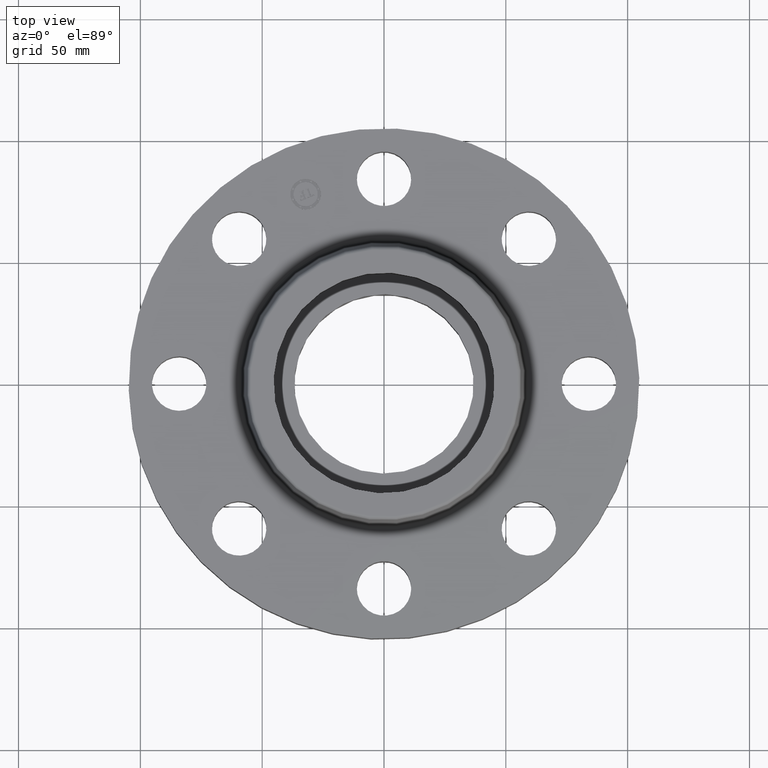
[diagram: clean part render]
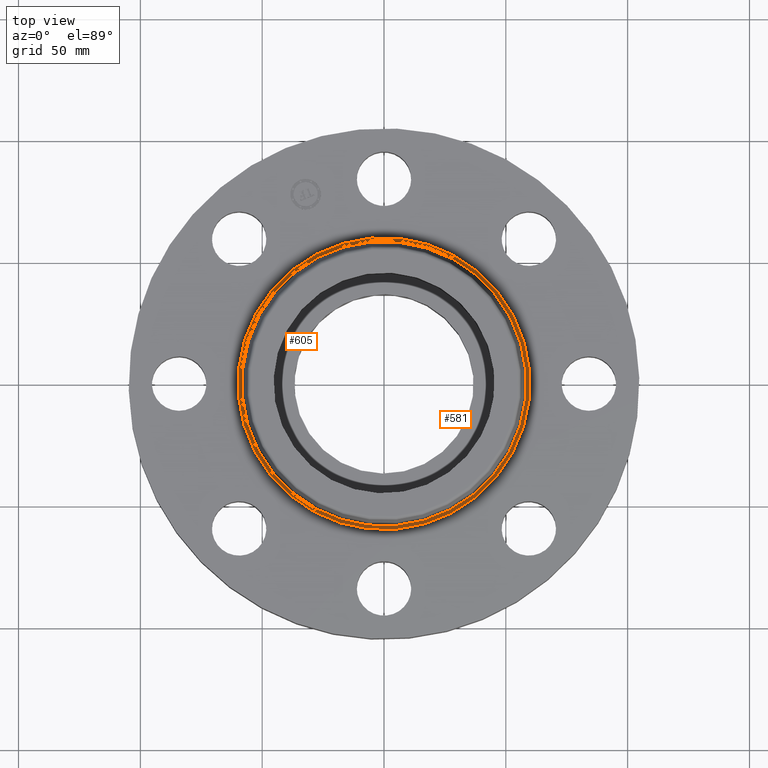
[diagram: same view with one multi-face feature highlighted, each face labeled with its STEP entity id]
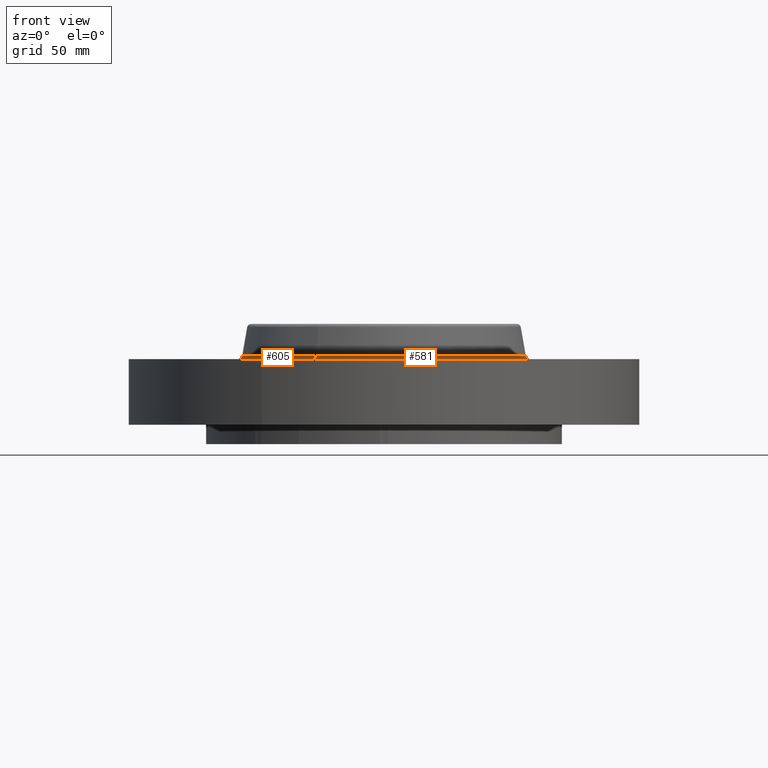
[diagram: same view with one multi-face feature highlighted, each face labeled with its STEP entity id]
A machine part, top view. The highlighted faces form ONE feature: a constant-radius fillet chain: 2 tangent blend faces with common blend radius 1.524 mm. The faces share edges in the B-rep.
A second angle (front view) of the same feature is appended — it is thin or edge-on in the first view.
Their STEP definitions:
[1] entity #605 (Torus):
#472=AXIS2_PLACEMENT_3D('Circle Axis2P3D',#470,#471,$) ;
#567=AXIS2_PLACEMENT_3D('Circle Axis2P3D',#565,#566,$) ;
#572=AXIS2_PLACEMENT_3D('Circle Axis2P3D',#570,#571,$) ;
#592=AXIS2_PLACEMENT_3D('Torus Axis2P3D',#589,#590,#591) ;
#596=AXIS2_PLACEMENT_3D('Circle Axis2P3D',#594,#595,$) ;
#436=CARTESIAN_POINT('Vertex',(1.10328162249,2.01954346356,1.10958110934)) ;
#438=CARTESIAN_POINT('Vertex',(-1.10328162249,-2.01954346356,1.10958110934)) ;
#470=CARTESIAN_POINT('Axis2P3D Location',(0.,0.,1.10958110934)) ;
#560=CARTESIAN_POINT('Vertex',(1.13161014174,2.07139847022,1.06)) ;
#562=CARTESIAN_POINT('Vertex',(-1.13161014174,-2.07139847022,1.06)) ;
#565=CARTESIAN_POINT('Axis2P3D Location',(1.13161014174,2.07139847022,1.12)) ;
#570=CARTESIAN_POINT('Axis2P3D Location',(-1.13161014174,-2.07139847022,1.12)) ;
#589=CARTESIAN_POINT('Axis2P3D Location',(0.,0.,1.12)) ;
#594=CARTESIAN_POINT('Axis2P3D Location',(0.,0.,1.06)) ;
#471=DIRECTION('Axis2P3D Direction',(-0.,0.,-0.0393700787402)) ;
#566=DIRECTION('Axis2P3D Direction',(-0.0345504945626,0.0188750212049,0.)) ;
#571=DIRECTION('Axis2P3D Direction',(0.0345504945626,-0.0188750212049,0.)) ;
#590=DIRECTION('Axis2P3D Direction',(0.,0.,-0.0393700787402)) ;
#591=DIRECTION('Axis2P3D XDirection',(-0.0188750212049,-0.0345504945626,0.)) ;
#595=DIRECTION('Axis2P3D Direction',(-0.,0.,-0.0393700787402)) ;
#600=ORIENTED_EDGE('',*,*,#598,.F.) ;
#601=ORIENTED_EDGE('',*,*,#574,.T.) ;
#602=ORIENTED_EDGE('',*,*,#474,.T.) ;
#603=ORIENTED_EDGE('',*,*,#569,.F.) ;
#605=ADVANCED_FACE('PartBody',(#604),#593,.F.) ;
#473=CIRCLE('generated circle',#472,2.30125751271) ;
#568=CIRCLE('generated circle',#567,0.0600000000002) ;
#573=CIRCLE('generated circle',#572,0.0600000000002) ;
#597=CIRCLE('generated circle',#596,2.36034597788) ;
#593=TOROIDAL_SURFACE('homeo Torus',#592,2.36034597788,0.0600000000002) ;
#474=EDGE_CURVE('',#439,#437,#473,.T.) ;
#569=EDGE_CURVE('',#561,#437,#568,.T.) ;
#574=EDGE_CURVE('',#563,#439,#573,.T.) ;
#598=EDGE_CURVE('',#563,#561,#597,.T.) ;
#599=EDGE_LOOP('',(#600,#601,#602,#603)) ;
#604=FACE_OUTER_BOUND('',#599,.T.) ;
#437=VERTEX_POINT('',#436) ;
#439=VERTEX_POINT('',#438) ;
#561=VERTEX_POINT('',#560) ;
#563=VERTEX_POINT('',#562) ;
[2] entity #581 (Torus):
#434=AXIS2_PLACEMENT_3D('Circle Axis2P3D',#432,#433,$) ;
#554=AXIS2_PLACEMENT_3D('Torus Axis2P3D',#551,#552,#553) ;
#558=AXIS2_PLACEMENT_3D('Circle Axis2P3D',#556,#557,$) ;
#567=AXIS2_PLACEMENT_3D('Circle Axis2P3D',#565,#566,$) ;
#572=AXIS2_PLACEMENT_3D('Circle Axis2P3D',#570,#571,$) ;
#432=CARTESIAN_POINT('Axis2P3D Location',(0.,0.,1.10958110934)) ;
#436=CARTESIAN_POINT('Vertex',(1.10328162249,2.01954346356,1.10958110934)) ;
#438=CARTESIAN_POINT('Vertex',(-1.10328162249,-2.01954346356,1.10958110934)) ;
#551=CARTESIAN_POINT('Axis2P3D Location',(0.,0.,1.12)) ;
#556=CARTESIAN_POINT('Axis2P3D Location',(0.,0.,1.06)) ;
#560=CARTESIAN_POINT('Vertex',(1.13161014174,2.07139847022,1.06)) ;
#562=CARTESIAN_POINT('Vertex',(-1.13161014174,-2.07139847022,1.06)) ;
#565=CARTESIAN_POINT('Axis2P3D Location',(1.13161014174,2.07139847022,1.12)) ;
#570=CARTESIAN_POINT('Axis2P3D Location',(-1.13161014174,-2.07139847022,1.12)) ;
#433=DIRECTION('Axis2P3D Direction',(-0.,0.,-0.0393700787402)) ;
#552=DIRECTION('Axis2P3D Direction',(0.,0.,-0.0393700787402)) ;
#553=DIRECTION('Axis2P3D XDirection',(0.0188750212049,0.0345504945626,0.)) ;
#557=DIRECTION('Axis2P3D Direction',(-0.,0.,-0.0393700787402)) ;
#566=DIRECTION('Axis2P3D Direction',(-0.0345504945626,0.0188750212049,0.)) ;
#571=DIRECTION('Axis2P3D Direction',(0.0345504945626,-0.0188750212049,0.)) ;
#576=ORIENTED_EDGE('',*,*,#564,.F.) ;
#577=ORIENTED_EDGE('',*,*,#569,.T.) ;
#578=ORIENTED_EDGE('',*,*,#440,.T.) ;
#579=ORIENTED_EDGE('',*,*,#574,.F.) ;
#581=ADVANCED_FACE('PartBody',(#580),#555,.F.) ;
#435=CIRCLE('generated circle',#434,2.30125751271) ;
#559=CIRCLE('generated circle',#558,2.36034597788) ;
#568=CIRCLE('generated circle',#567,0.0600000000002) ;
#573=CIRCLE('generated circle',#572,0.0600000000002) ;
#555=TOROIDAL_SURFACE('homeo Torus',#554,2.36034597788,0.0600000000002) ;
#440=EDGE_CURVE('',#437,#439,#435,.T.) ;
#564=EDGE_CURVE('',#561,#563,#559,.T.) ;
#569=EDGE_CURVE('',#561,#437,#568,.T.) ;
#574=EDGE_CURVE('',#563,#439,#573,.T.) ;
#575=EDGE_LOOP('',(#576,#577,#578,#579)) ;
#580=FACE_OUTER_BOUND('',#575,.T.) ;
#437=VERTEX_POINT('',#436) ;
#439=VERTEX_POINT('',#438) ;
#561=VERTEX_POINT('',#560) ;
#563=VERTEX_POINT('',#562) ;